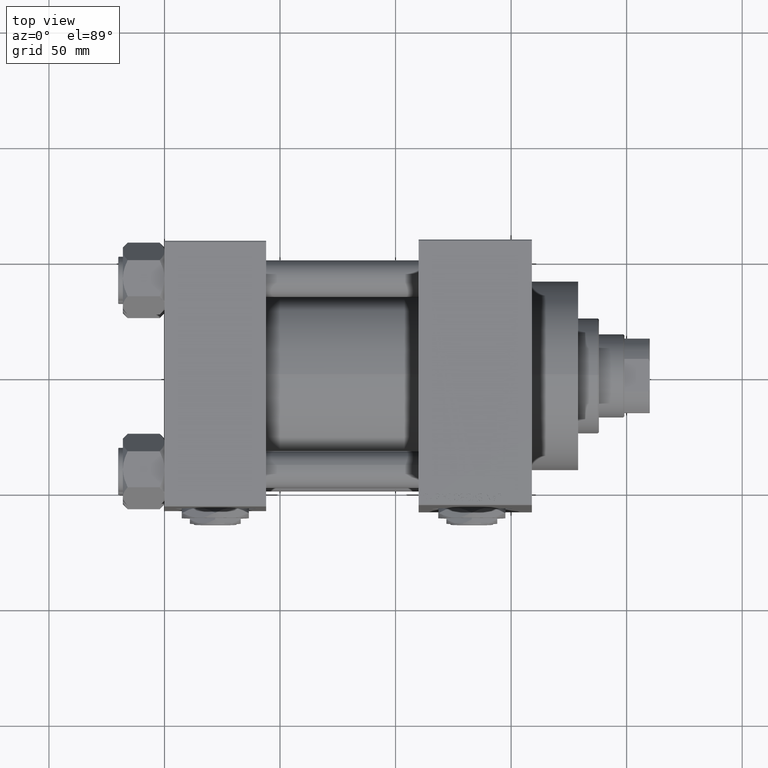
[diagram: clean part render]
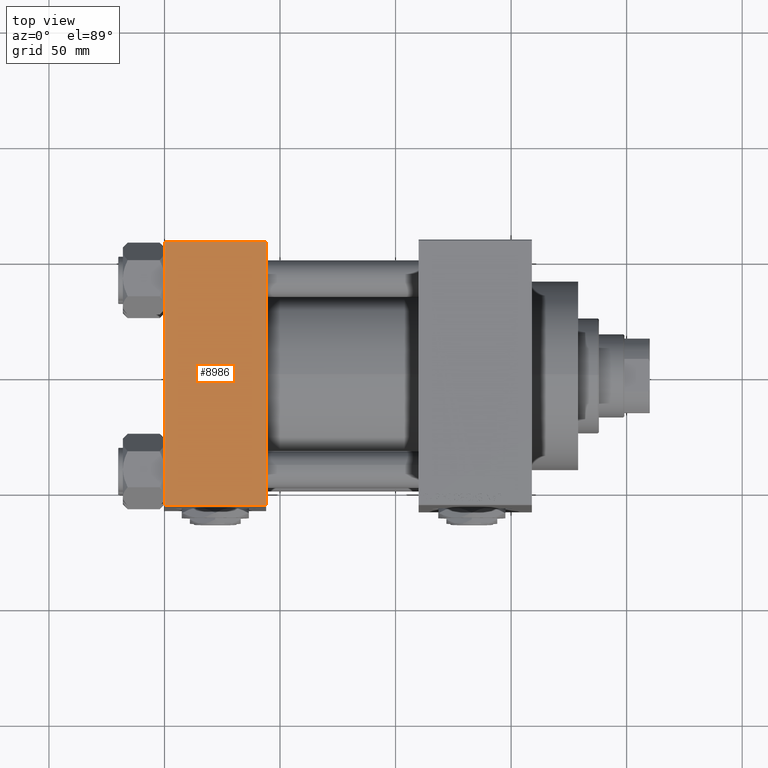
[diagram: same view with one face highlighted and labeled with its STEP entity id]
A machine part, top view. The second image highlights one B-rep face of the part: STEP entity #8986.
In plain terms, the highlighted planar face has unit normal (0, 0, -1).
Its self-contained STEP definition (entity closure, byte-faithful):
#173 = FACE_OUTER_BOUND ( 'NONE', #5121, .T. ) ;
#631 = CARTESIAN_POINT ( 'NONE',  ( 0.000000000000000000, -57.00000000000003553, 57.49999999999999289 ) ) ;
#672 = CARTESIAN_POINT ( 'NONE',  ( 44.00000000000000000, 57.49999999999999289, 57.50000000000000711 ) ) ;
#688 = CARTESIAN_POINT ( 'NONE',  ( 0.000000000000000000, 57.00000000000000711, 57.50000000000000711 ) ) ;
#2256 = DIRECTION ( 'NONE',  ( 0.000000000000000000, -1.000000000000000000, -1.206764157201257045E-16 ) ) ;
#3120 = VECTOR ( 'NONE', #4272, 1000.000000000000000 ) ;
#4201 = DIRECTION ( 'NONE',  ( 0.000000000000000000, 1.000000000000000000, 1.206764157201257045E-16 ) ) ;
#4272 = DIRECTION ( 'NONE',  ( 0.000000000000000000, -1.000000000000000000, -1.206764157201257045E-16 ) ) ;
#5121 = EDGE_LOOP ( 'NONE', ( #15031, #30430, #42832, #36976 ) ) ;
#6796 = EDGE_CURVE ( 'NONE', #18678, #12661, #16848, .T. ) ;
#8986 = ADVANCED_FACE ( 'NONE', ( #173 ), #27609, .F. ) ;
#10466 = CARTESIAN_POINT ( 'NONE',  ( 0.000000000000000000, 57.00000000000000711, 57.50000000000000711 ) ) ;
#12067 = CARTESIAN_POINT ( 'NONE',  ( 0.000000000000000000, 57.49999999999999289, 57.50000000000000711 ) ) ;
#12661 = VERTEX_POINT ( 'NONE', #24481 ) ;
#13591 = EDGE_CURVE ( 'NONE', #44553, #12661, #40114, .T. ) ;
#15031 = ORIENTED_EDGE ( 'NONE', *, *, #17925, .T. ) ;
#16014 = DIRECTION ( 'NONE',  ( 0.000000000000000000, 1.206764157201257045E-16, -1.000000000000000000 ) ) ;
#16848 = LINE ( 'NONE', #43789, #42132 ) ;
#17925 = EDGE_CURVE ( 'NONE', #35790, #44553, #42787, .T. ) ;
#18678 = VERTEX_POINT ( 'NONE', #19002 ) ;
#19002 = CARTESIAN_POINT ( 'NONE',  ( 44.00000000000000000, 57.00000000000000711, 57.50000000000000711 ) ) ;
#24481 = CARTESIAN_POINT ( 'NONE',  ( 44.00000000000000000, -57.00000000000003553, 57.49999999999999289 ) ) ;
#25082 = DIRECTION ( 'NONE',  ( -1.000000000000000000, 0.000000000000000000, 0.000000000000000000 ) ) ;
#27061 = VECTOR ( 'NONE', #25082, 1000.000000000000000 ) ;
#27609 = PLANE ( 'NONE',  #41361 ) ;
#30430 = ORIENTED_EDGE ( 'NONE', *, *, #13591, .T. ) ;
#35790 = VERTEX_POINT ( 'NONE', #688 ) ;
#36976 = ORIENTED_EDGE ( 'NONE', *, *, #39679, .T. ) ;
#39679 = EDGE_CURVE ( 'NONE', #18678, #35790, #47984, .T. ) ;
#40114 = LINE ( 'NONE', #40365, #41495 ) ;
#40365 = CARTESIAN_POINT ( 'NONE',  ( 44.00000000000000000, -57.00000000000003553, 57.49999999999999289 ) ) ;
#40614 = DIRECTION ( 'NONE',  ( 1.000000000000000000, 0.000000000000000000, 0.000000000000000000 ) ) ;
#41361 = AXIS2_PLACEMENT_3D ( 'NONE', #672, #16014, #4201 ) ;
#41495 = VECTOR ( 'NONE', #40614, 1000.000000000000000 ) ;
#42132 = VECTOR ( 'NONE', #2256, 1000.000000000000000 ) ;
#42787 = LINE ( 'NONE', #12067, #3120 ) ;
#42832 = ORIENTED_EDGE ( 'NONE', *, *, #6796, .F. ) ;
#43789 = CARTESIAN_POINT ( 'NONE',  ( 44.00000000000000000, 57.49999999999999289, 57.50000000000000711 ) ) ;
#44553 = VERTEX_POINT ( 'NONE', #631 ) ;
#47984 = LINE ( 'NONE', #10466, #27061 ) ;